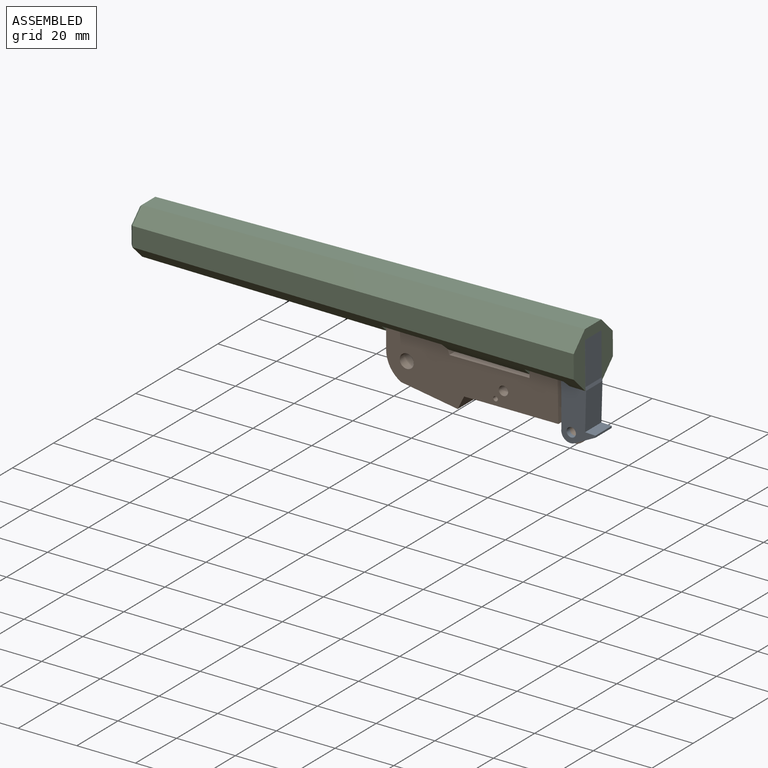
[diagram: assembled view]
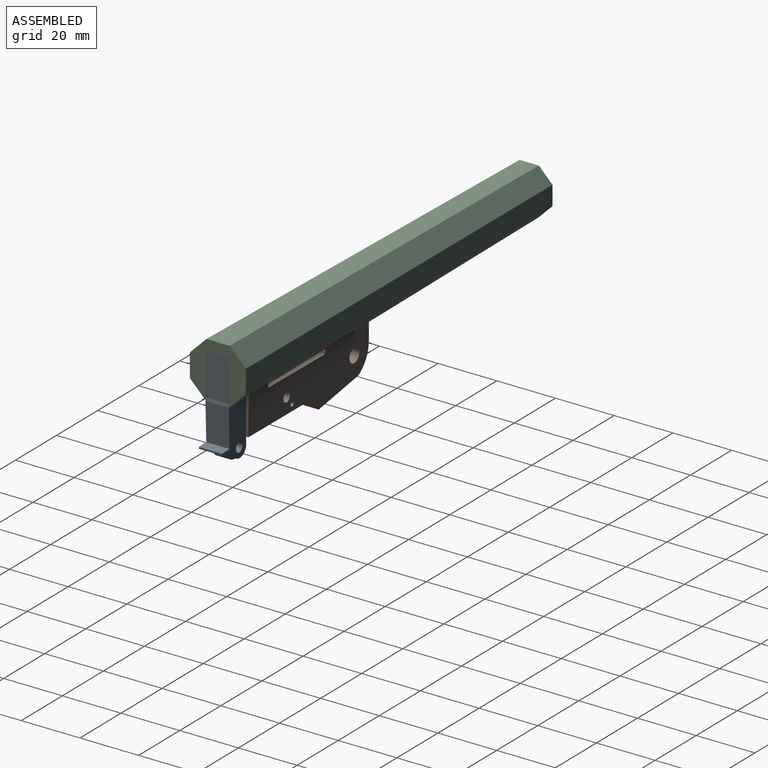
[diagram: assembled view, second angle]
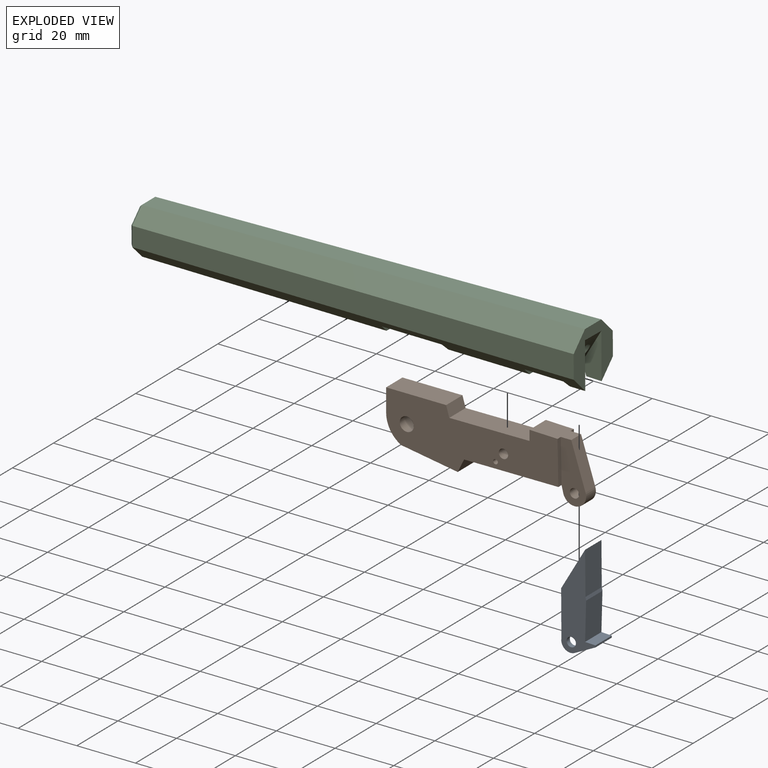
[diagram: exploded view]
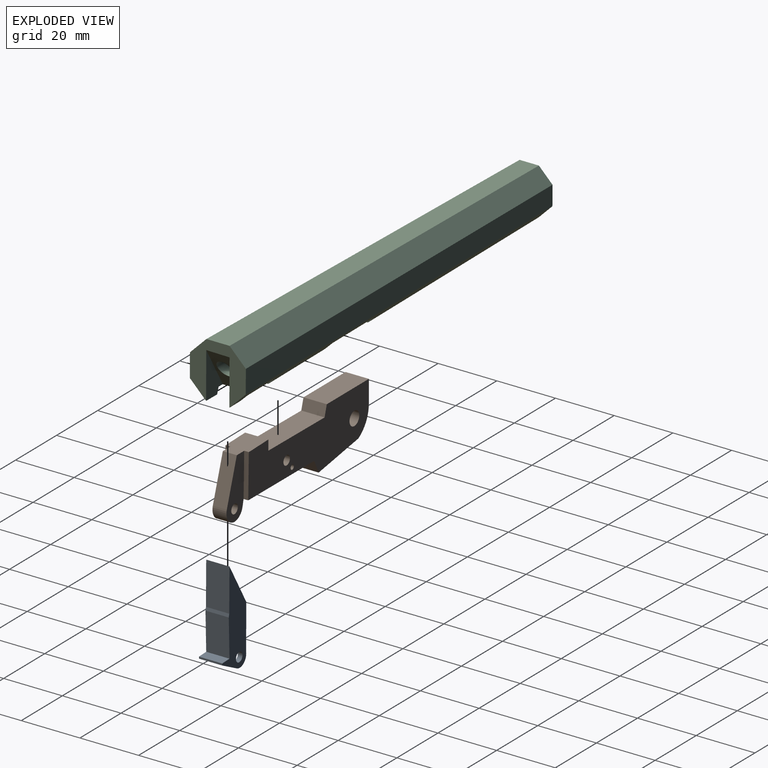
[diagram: exploded view, second angle]
ASSEMBLY  parts=3 mates=2
PART A: 18 faces, bbox 11.7x7.9x33.1 mm
  f0: plane 15.42x1.59mm, normal (-1,0,0), area 24.5mm2, adj f1,f12,f13,f17
  f1: cylinder r=3.13mm len=4.53mm, axis (0,1,0), area 11mm2, adj f0,f5,f13,f17
  f2: cylinder r=1.59mm len=3.18mm, axis (0,1,0), area 15.8mm2, adj f13,f17
  f3: plane 15.42x1.59mm, normal (-1,0,0), area 24.5mm2, adj f4,f12,f14,f16
  f4: cylinder r=3.13mm len=4.53mm, axis (0,1,0), area 11mm2, adj f3,f5,f14,f16
  f5: plane 7.94x7.13mm, normal (0.45,0,-0.89), area 46.9mm2, adj f1,f4,f6,f13,f14,f15,f16,f17
  f6: plane 7.94x0.63mm, normal (1,0,-0.02), area 5mm2, adj f5,f7,f13,f14
  f7: plane 7.94x3.53mm, normal (0.04,0,1), area 28.1mm2, adj f6,f8,f13,f14
  f8: plane 12.81x7.94mm, normal (1,0,-0.03), area 101.7mm2, adj f7,f9,f13,f14
  f9: plane 7.94x1.08mm, normal (0.98,0,0.2), area 8.8mm2, adj f8,f10,f13,f14
  f10: plane 14.49x7.94mm, normal (1,0,0), area 115mm2, adj f9,f12,f13,f14
  f11: cylinder r=1.59mm len=3.18mm, axis (0,1,0), area 15.8mm2, adj f14,f16
  f12: plane 13.97x8.25mm, normal (-0.86,0,0.51), area 102mm2, adj f0,f3,f10,f13,f14,f15,f16,f17
  f13: plane 33.06x11.67mm, normal (0,-1,0), area 206.5mm2, adj f0,f1,f2,f5,f6,f7,f8,f9
  f14: plane 33.06x11.67mm, normal (0,1,0), area 206.5mm2, adj f3,f4,f5,f6,f7,f8,f9,f10
  f15: plane 22.08x4.76mm, normal (-0.98,0,-0.21), area 107.5mm2, adj f5,f12,f16,f17
  f16: plane 23.94x7.6mm, normal (0,-1,0), area 108.8mm2, adj f3,f4,f5,f11,f12,f15
  f17: plane 23.94x7.6mm, normal (0,1,0), area 108.8mm2, adj f0,f1,f2,f5,f12,f15
PART B: 24 faces, bbox 67x7.9x20.4 mm
  f0: plane 58.68x19.54mm, normal (0,1,0), area 809mm2, adj f7,f8,f9,f10,f11,f12,f13,f14
  f1: plane 4.76x3.58mm, normal (0,0,1), area 17mm2, adj f3,f7,f21,f23
  f2: plane 4.76x2.32mm, normal (-0.97,0,-0.24), area 11.4mm2, adj f4,f16,f21,f23
  f3: plane 14.91x4.86mm, normal (0.95,0,0.31), area 74.7mm2, adj f1,f4,f21,f23
  f4: cylinder r=3.95mm len=7.79mm, axis (0,1,0), area 60.6mm2, adj f2,f3,f21,f23
  f5: cylinder r=1.59mm len=4.76mm, axis (0,1,0), area 47.5mm2, adj f21,f23
  f6: plane 58.68x19.54mm, normal (0,-1,0), area 809mm2, adj f7,f8,f9,f10,f11,f12,f13,f14
  f7: plane 9.54x7.94mm, normal (0.03,0,1), area 75.7mm2, adj f0,f1,f6,f8,f20,f22
  f8: plane 7.94x3.45mm, normal (-1,0,0), area 27.4mm2, adj f0,f6,f7,f9
  f9: plane 27.34x7.94mm, normal (-0.01,0,1), area 217mm2, adj f0,f6,f8,f10
  f10: plane 7.94x3.65mm, normal (0.96,0,0.28), area 30.2mm2, adj f0,f6,f9,f11
  f11: plane 20.46x7.94mm, normal (0,0,1), area 162.4mm2, adj f0,f6,f10,f12
  f12: plane 7.94x7.71mm, normal (-1,0,0), area 61.2mm2, adj f0,f6,f11,f13
  f13: cylinder r=9.97mm len=8.7mm, axis (0,1,0), area 83.8mm2, adj f0,f6,f12,f14
  f14: plane 19.31x7.94mm, normal (-0.16,0,-0.99), area 155.3mm2, adj f0,f6,f13,f15
  f15: plane 7.94x4.43mm, normal (0.9,0,-0.44), area 39.2mm2, adj f0,f6,f14,f16
  f16: plane 32.1x7.94mm, normal (0,0,-1), area 254.8mm2, adj f0,f2,f6,f15,f20,f22
  f17: cylinder r=0.79mm len=7.94mm, axis (0,1,0), area 39.6mm2, adj f0,f6
  f18: cylinder r=2.38mm len=7.94mm, axis (0,1,0), area 118.8mm2, adj f0,f6
  f19: cylinder r=1.59mm len=7.94mm, axis (0,1,0), area 79.2mm2, adj f0,f6
  f20: plane 14.74x1.59mm, normal (1,0,0.02), area 23.4mm2, adj f6,f7,f16,f21
  f21: plane 20.09x8.63mm, normal (0,-1,0), area 114mm2, adj f1,f2,f3,f4,f5,f20
  f22: plane 14.74x1.59mm, normal (1,0,0.02), area 23.4mm2, adj f0,f7,f16,f23
  f23: plane 20.09x8.63mm, normal (0,1,0), area 114mm2, adj f1,f2,f3,f4,f5,f22
PART C: 33 faces, bbox 152.4x19.1x19 mm
  f0: plane 19.05x19.03mm, normal (1,0,0), area 177mm2, adj f1,f7,f9,f10,f11,f12,f13,f30
  f1: plane 151.51x6.23mm, normal (-0.01,0.71,-0.71), area 990.9mm2, adj f0,f2,f3,f4,f7,f8,f23,f25
  f2: plane 2.03x2.02mm, normal (-0.95,0.01,-0.3), area 2.1mm2, adj f1,f3,f31
  f3: plane 12.08x3.69mm, normal (-0.01,0,-1), area 27mm2, adj f1,f2,f9,f24,f25,f30,f31,f32
  f4: plane 27.84x7.73mm, normal (-0.01,0,-1), area 211.2mm2, adj f1,f9,f26,f27
  f5: plane 1.44x0.02mm, normal (-0.01,0,-1), area 0mm2, adj f9,f24,f32
  f6: plane 14.1x14.1mm, normal (-1,0,0), area 121.8mm2, adj f15,f16,f17,f18,f19,f20,f21,f22
  f7: plane 151.51x7.89mm, normal (-0.01,1,0), area 1096.6mm2, adj f0,f1,f13,f21
  f8: plane 83.63x7.3mm, normal (-0.01,0,-1), area 580.5mm2, adj f1,f9,f22,f29
  f9: plane 151.51x6.23mm, normal (-0.01,-0.71,-0.71), area 991.3mm2, adj f0,f3,f4,f5,f8,f10,f20,f24
  f10: plane 151.51x7.89mm, normal (-0.01,-1,0), area 1096.6mm2, adj f0,f9,f11,f18
  f11: plane 151.51x6.23mm, normal (-0.01,-0.71,0.71), area 1096.6mm2, adj f0,f10,f12,f16
  f12: plane 151.51x7.89mm, normal (-0.01,0,1), area 1096.6mm2, adj f0,f11,f13,f17
  f13: plane 151.51x6.23mm, normal (-0.01,0.71,0.71), area 1096.6mm2, adj f0,f7,f12,f19
  f14: cylinder r=2.79mm len=149.59mm, axis (-1,0,0), area 2596.6mm2, adj f15,f30
  f15: cone r=2.79mm half-angle=45deg, axis (-1,0,0), area 25.9mm2, adj f6,f14
  f16: plane 5.03x5.03mm, normal (-0.71,-0.5,0.5), area 7.8mm2, adj f6,f11,f17,f18
  f17: plane 6.58x0.9mm, normal (-0.71,0,0.7), area 7.8mm2, adj f6,f12,f16,f19
  f18: plane 6.58x0.9mm, normal (-0.71,-0.7,0), area 7.8mm2, adj f6,f10,f16,f20
  f19: plane 5.03x5.03mm, normal (-0.71,0.5,0.5), area 7.8mm2, adj f6,f13,f17,f21
  f20: plane 5.03x5.03mm, normal (-0.71,-0.5,-0.5), area 7.8mm2, adj f6,f9,f18,f22
  f21: plane 6.58x0.9mm, normal (-0.71,0.7,0), area 7.8mm2, adj f6,f7,f19,f23
  f22: plane 6.58x0.9mm, normal (-0.71,0,-0.7), area 7.8mm2, adj f6,f8,f20,f23
  f23: plane 5.03x5.03mm, normal (-0.71,0.5,-0.5), area 7.8mm2, adj f1,f6,f21,f22
  f24: plane 2.13x2.13mm, normal (-0.95,0.01,-0.3), area 2.4mm2, adj f3,f5,f9,f32
  f25: plane 12.38x9.66mm, normal (-0.03,0,-1), area 116.4mm2, adj f1,f3,f9,f26
  f26: plane 12.38x2.33mm, normal (1,-0.01,-0.01), area 23.4mm2, adj f1,f4,f9,f25
  f27: plane 11.9x2.22mm, normal (-0.96,0.01,-0.28), area 22.3mm2, adj f1,f4,f9,f28
  f28: plane 20.58x11.9mm, normal (-0.01,0,-1), area 239.8mm2, adj f1,f9,f27,f29
  f29: plane 11.55x2.12mm, normal (1,-0.01,-0.01), area 20mm2, adj f1,f8,f9,f28
  f30: plane 13.45x8.02mm, normal (0.86,-0.01,-0.51), area 95mm2, adj f0,f3,f14,f31,f32
  f31: plane 15.49x7.9mm, normal (-0.01,-1,0), area 64.3mm2, adj f0,f1,f2,f3,f30
  f32: plane 15.62x7.98mm, normal (0.01,1,0), area 65.9mm2, adj f0,f3,f5,f9,f24,f30
PLACE A rot(axis=(0,-1,0),0.3deg) t=(110.35,8.98,-112.68)mm
PLACE B t=(-9.2,12.95,-110.33)mm fixed
PLACE C rot(axis=(-0.01,-1,0),0.4deg) t=(5.68,8.98,18.65)mm
MATE revolute B.f4 <-> A.f2  axis (0,-1,0) through (0.95,6.6,-4.87)mm
MATE fastened C.f28 <-> B.f11  axis (0,0,-1) through (-51.9,8.98,11.53)mm
